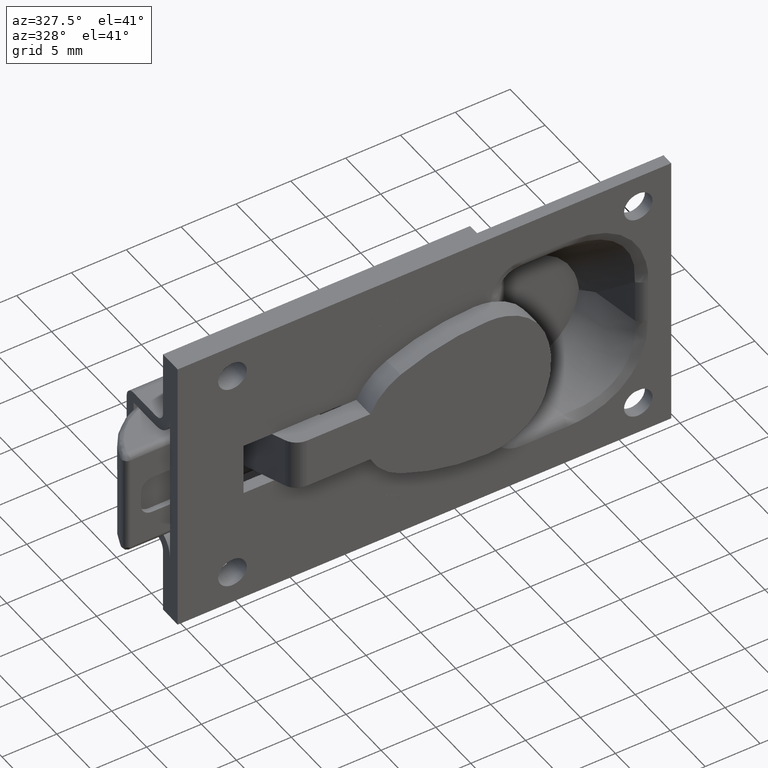
[diagram: clean part render]
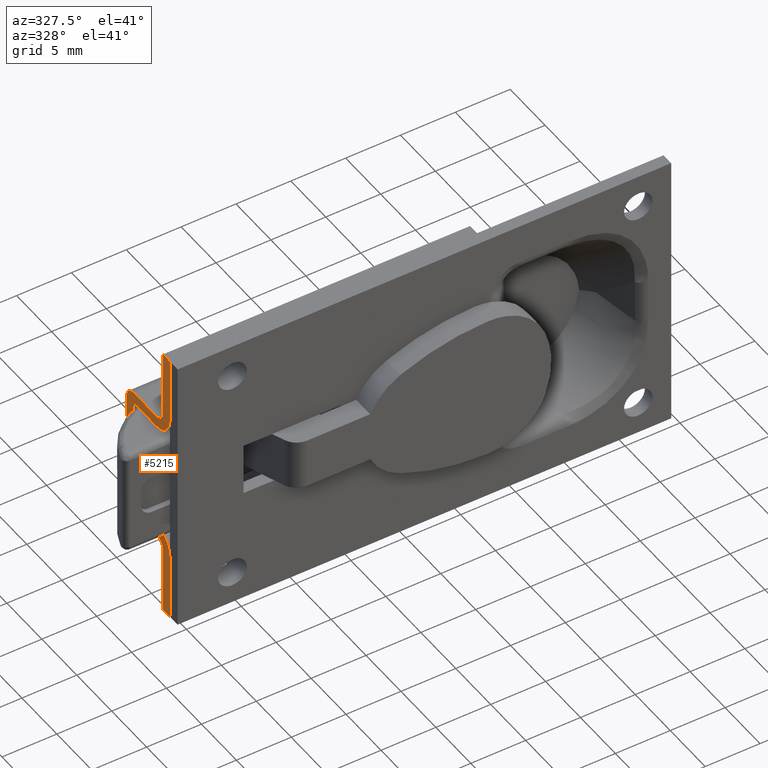
[diagram: same view with one face highlighted and labeled with its STEP entity id]
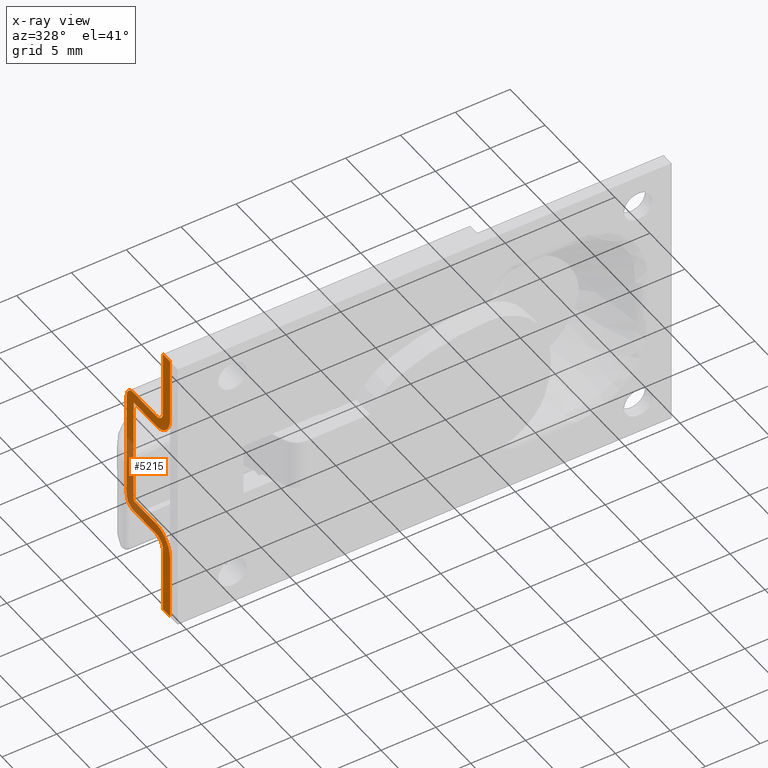
[diagram: x-ray of the same camera — body ghosted, the highlighted face saturated]
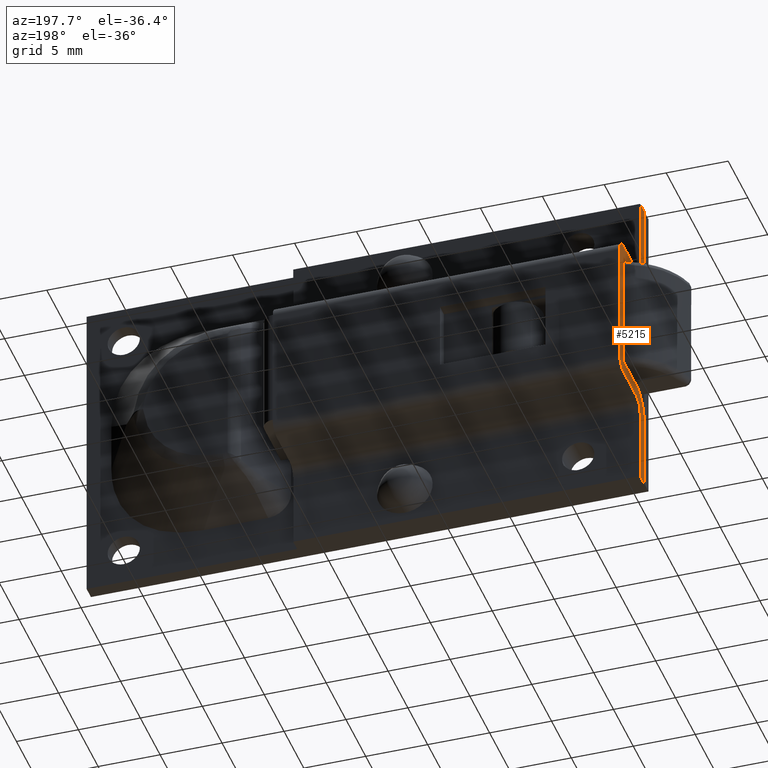
[diagram: same view with one face highlighted and labeled with its STEP entity id]
A machine part, auxiliary view. The second image highlights one B-rep face of the part: STEP entity #5215.
The next image is the same camera in x-ray: the body ghosted, the highlighted face saturated — about 22% of this face is hidden behind the body in this view.
A second angle (auxiliary view) of the same face is appended — the face is thin or edge-on in the first view.
In plain terms, the highlighted face is a freeform B-spline surface patch.
Its self-contained STEP definition (entity closure, byte-faithful):
#5030=CARTESIAN_POINT('',(-10.800003000000119,7.609682846384334,14.298699949606959));
#5031=CARTESIAN_POINT('',(-10.800003000000119,0.790307042751101,14.298699949606950));
#5032=CARTESIAN_POINT('',(-10.800003000000119,7.609682846384334,-14.298700646981301));
#5033=CARTESIAN_POINT('',(-10.800003000000119,0.790307042751101,-14.298700646981301));
#5034=B_SPLINE_SURFACE_WITH_KNOTS('',1,1,((#5030,#5032),(#5031,#5033)),.UNSPECIFIED.,.F.,.F.,.U.,(2,2),(2,2),(0.0,6.819375803633232),(0.0,28.597400596588258),.UNSPECIFIED.);
#5035=CARTESIAN_POINT('',(-10.800003000000160,6.299993000000001,6.0));
#5036=VERTEX_POINT('',#5035);
#5037=CARTESIAN_POINT('',(-10.800003000000160,7.299993000000001,5.0));
#5038=VERTEX_POINT('',#5037);
#5039=CARTESIAN_POINT('',(-10.800003000000160,6.299993000000001,6.0));
#5040=CARTESIAN_POINT('',(-10.800003000000160,7.299993000000002,6.0));
#5041=CARTESIAN_POINT('',(-10.800003000000160,7.299993000000001,5.0));
#5049=(BOUNDED_CURVE()B_SPLINE_CURVE(2,(#5039,#5040,#5041),.UNSPECIFIED.,.F.,.U.)CURVE()GEOMETRIC_REPRESENTATION_ITEM()QUASI_UNIFORM_CURVE()RATIONAL_B_SPLINE_CURVE((1.0,0.707106781186548,1.0))REPRESENTATION_ITEM(''));
#5050=EDGE_CURVE('',#5036,#5038,#5049,.T.);
#5051=ORIENTED_EDGE('',*,*,#5050,.T.);
#5052=CARTESIAN_POINT('',(-10.800003000000160,7.299993000000001,-5.000000157079640));
#5053=VERTEX_POINT('',#5052);
#5054=CARTESIAN_POINT('',(-10.800003000000160,7.299993000000001,-5.000000157079640));
#5055=CARTESIAN_POINT('',(-10.800003000000160,7.299993000000001,5.0));
#5056=QUASI_UNIFORM_CURVE('',1,(#5054,#5055),.UNSPECIFIED.,.F.,.U.);
#5057=EDGE_CURVE('',#5053,#5038,#5056,.T.);
#5058=ORIENTED_EDGE('',*,*,#5057,.F.);
#5059=CARTESIAN_POINT('',(-10.800003000000160,6.299993000000001,-6.0));
#5060=VERTEX_POINT('',#5059);
#5061=CARTESIAN_POINT('',(-10.800003000000160,7.299992999999988,-5.000000157079640));
#5062=CARTESIAN_POINT('',(-10.800003000000160,7.299992842920371,-6.0));
#5063=CARTESIAN_POINT('',(-10.800003000000160,6.299993000000001,-6.0));
#5071=(BOUNDED_CURVE()B_SPLINE_CURVE(2,(#5061,#5062,#5063),.UNSPECIFIED.,.F.,.U.)CURVE()GEOMETRIC_REPRESENTATION_ITEM()QUASI_UNIFORM_CURVE()RATIONAL_B_SPLINE_CURVE((1.0,0.707106836722585,1.0))REPRESENTATION_ITEM(''));
#5072=EDGE_CURVE('',#5053,#5060,#5071,.T.);
#5073=ORIENTED_EDGE('',*,*,#5072,.T.);
#5074=CARTESIAN_POINT('',(-10.800003000000160,3.099997052359880,-6.0));
#5075=VERTEX_POINT('',#5074);
#5076=CARTESIAN_POINT('',(-10.800003000000160,3.099997052359880,-6.0));
#5077=CARTESIAN_POINT('',(-10.800003000000160,6.299993000000001,-6.0));
#5078=QUASI_UNIFORM_CURVE('',1,(#5076,#5077),.UNSPECIFIED.,.F.,.U.);
#5079=EDGE_CURVE('',#5075,#5060,#5078,.T.);
#5080=ORIENTED_EDGE('',*,*,#5079,.F.);
#5081=CARTESIAN_POINT('',(-10.800003000000160,2.099997000000000,-7.0));
#5082=VERTEX_POINT('',#5081);
#5083=CARTESIAN_POINT('',(-10.800003000000160,2.099997000000000,-7.0));
#5084=CARTESIAN_POINT('',(-10.800003000000160,2.099997000000000,-6.585786422291053));
#5085=CARTESIAN_POINT('',(-10.800003000000160,2.392890237325466,-6.292893200301440));
#5086=CARTESIAN_POINT('',(-10.800003000000160,2.685783474650931,-5.999999978311829));
#5087=CARTESIAN_POINT('',(-10.800003000000160,3.099997052359880,-6.000000000000002));
#5095=(BOUNDED_CURVE()B_SPLINE_CURVE(2,(#5083,#5084,#5085,#5086,#5087),.UNSPECIFIED.,.F.,.U.)B_SPLINE_CURVE_WITH_KNOTS((3,2,3),(0.0,0.500000000000000,1.0),.UNSPECIFIED.)CURVE()GEOMETRIC_REPRESENTATION_ITEM()RATIONAL_B_SPLINE_CURVE((1.0,0.923879527501972,1.0,0.923879527501972,1.0))REPRESENTATION_ITEM(''));
#5096=EDGE_CURVE('',#5082,#5075,#5095,.T.);
#5097=ORIENTED_EDGE('',*,*,#5096,.F.);
#5098=CARTESIAN_POINT('',(-10.800003000000160,2.099997000000000,-13.0));
#5099=VERTEX_POINT('',#5098);
#5100=CARTESIAN_POINT('',(-10.800003000000160,2.099997000000000,-13.0));
#5101=CARTESIAN_POINT('',(-10.800003000000160,2.099997000000000,-7.0));
#5102=QUASI_UNIFORM_CURVE('',1,(#5100,#5101),.UNSPECIFIED.,.F.,.U.);
#5103=EDGE_CURVE('',#5099,#5082,#5102,.T.);
#5104=ORIENTED_EDGE('',*,*,#5103,.F.);
#5105=CARTESIAN_POINT('',(-10.800003000000160,1.099997000000016,-13.0));
#5106=VERTEX_POINT('',#5105);
#5107=CARTESIAN_POINT('',(-10.800003000000160,1.099997000000016,-13.0));
#5108=CARTESIAN_POINT('',(-10.800003000000160,2.099997000000000,-13.0));
#5109=QUASI_UNIFORM_CURVE('',1,(#5107,#5108),.UNSPECIFIED.,.F.,.U.);
#5110=EDGE_CURVE('',#5106,#5099,#5109,.T.);
#5111=ORIENTED_EDGE('',*,*,#5110,.F.);
#5112=CARTESIAN_POINT('',(-10.800003000000160,1.099997000000000,-7.0));
#5113=VERTEX_POINT('',#5112);
#5114=CARTESIAN_POINT('',(-10.800003000000160,1.099997000000000,-7.0));
#5115=CARTESIAN_POINT('',(-10.800003000000160,1.099997000000016,-13.0));
#5116=QUASI_UNIFORM_CURVE('',1,(#5114,#5115),.UNSPECIFIED.,.F.,.U.);
#5117=EDGE_CURVE('',#5113,#5106,#5116,.T.);
#5118=ORIENTED_EDGE('',*,*,#5117,.F.);
#5119=CARTESIAN_POINT('',(-10.800003000000160,3.099997000000000,-5.0));
#5120=VERTEX_POINT('',#5119);
#5121=CARTESIAN_POINT('',(-10.800003000000160,1.099997000000000,-7.0));
#5122=CARTESIAN_POINT('',(-10.800003000000160,1.099997000000000,-5.000000000000001));
#5123=CARTESIAN_POINT('',(-10.800003000000160,3.099997000000000,-5.0));
#5131=(BOUNDED_CURVE()B_SPLINE_CURVE(2,(#5121,#5122,#5123),.UNSPECIFIED.,.F.,.U.)CURVE()GEOMETRIC_REPRESENTATION_ITEM()QUASI_UNIFORM_CURVE()RATIONAL_B_SPLINE_CURVE((1.0,0.707106781186548,1.0))REPRESENTATION_ITEM(''));
#5132=EDGE_CURVE('',#5113,#5120,#5131,.T.);
#5133=ORIENTED_EDGE('',*,*,#5132,.T.);
#5134=CARTESIAN_POINT('',(-10.800003000000160,6.299993000000001,-5.0));
#5135=VERTEX_POINT('',#5134);
#5136=CARTESIAN_POINT('',(-10.800003000000160,6.299993000000001,-5.0));
#5137=CARTESIAN_POINT('',(-10.800003000000160,3.099997000000000,-5.0));
#5138=QUASI_UNIFORM_CURVE('',1,(#5136,#5137),.UNSPECIFIED.,.F.,.U.);
#5139=EDGE_CURVE('',#5135,#5120,#5138,.T.);
#5140=ORIENTED_EDGE('',*,*,#5139,.F.);
#5141=CARTESIAN_POINT('',(-10.800003000000160,6.299993000000001,5.0));
#5142=VERTEX_POINT('',#5141);
#5143=CARTESIAN_POINT('',(-10.800003000000160,6.299993000000001,5.0));
#5144=CARTESIAN_POINT('',(-10.800003000000160,6.299993000000001,-5.0));
#5145=QUASI_UNIFORM_CURVE('',1,(#5143,#5144),.UNSPECIFIED.,.F.,.U.);
#5146=EDGE_CURVE('',#5142,#5135,#5145,.T.);
#5147=ORIENTED_EDGE('',*,*,#5146,.F.);
#5148=CARTESIAN_POINT('',(-10.800003000000160,3.099997104719761,5.0));
#5149=VERTEX_POINT('',#5148);
#5150=CARTESIAN_POINT('',(-10.800003000000160,3.099997104719761,5.0));
#5151=CARTESIAN_POINT('',(-10.800003000000160,6.299993000000001,5.0));
#5152=QUASI_UNIFORM_CURVE('',1,(#5150,#5151),.UNSPECIFIED.,.F.,.U.);
#5153=EDGE_CURVE('',#5149,#5142,#5152,.T.);
#5154=ORIENTED_EDGE('',*,*,#5153,.F.);
#5155=CARTESIAN_POINT('',(-10.800003000000160,1.099997000000016,7.0));
#5156=VERTEX_POINT('',#5155);
#5157=CARTESIAN_POINT('',(-10.800003000000160,3.099997104719761,5.000000000000003));
#5158=CARTESIAN_POINT('',(-10.800003000000160,2.271569949301865,4.999999956623654));
#5159=CARTESIAN_POINT('',(-10.800003000000160,1.685783474650932,5.585786400602879));
#5160=CARTESIAN_POINT('',(-10.800003000000160,1.099997000000000,6.171572844582103));
#5161=CARTESIAN_POINT('',(-10.800003000000160,1.099997000000000,7.0));
#5169=(BOUNDED_CURVE()B_SPLINE_CURVE(2,(#5157,#5158,#5159,#5160,#5161),.UNSPECIFIED.,.F.,.U.)B_SPLINE_CURVE_WITH_KNOTS((3,2,3),(0.0,0.500000000000000,1.0),.UNSPECIFIED.)CURVE()GEOMETRIC_REPRESENTATION_ITEM()RATIONAL_B_SPLINE_CURVE((1.0,0.923879527501972,1.0,0.923879527501972,1.0))REPRESENTATION_ITEM(''));
#5170=EDGE_CURVE('',#5149,#5156,#5169,.T.);
#5171=ORIENTED_EDGE('',*,*,#5170,.T.);
#5172=CARTESIAN_POINT('',(-10.800003000000160,1.099997000000016,13.0));
#5173=VERTEX_POINT('',#5172);
#5174=CARTESIAN_POINT('',(-10.800003000000160,1.099997000000016,13.0));
#5175=CARTESIAN_POINT('',(-10.800003000000160,1.099997000000016,7.0));
#5176=QUASI_UNIFORM_CURVE('',1,(#5174,#5175),.UNSPECIFIED.,.F.,.U.);
#5177=EDGE_CURVE('',#5173,#5156,#5176,.T.);
#5178=ORIENTED_EDGE('',*,*,#5177,.F.);
#5179=CARTESIAN_POINT('',(-10.800003000000160,2.099997000000000,13.0));
#5180=VERTEX_POINT('',#5179);
#5181=CARTESIAN_POINT('',(-10.800003000000160,2.099997000000000,13.0));
#5182=CARTESIAN_POINT('',(-10.800003000000160,1.099997000000016,13.0));
#5183=QUASI_UNIFORM_CURVE('',1,(#5181,#5182),.UNSPECIFIED.,.F.,.U.);
#5184=EDGE_CURVE('',#5180,#5173,#5183,.T.);
#5185=ORIENTED_EDGE('',*,*,#5184,.F.);
#5186=CARTESIAN_POINT('',(-10.800003000000160,2.099997000000000,6.999999947640110));
#5187=VERTEX_POINT('',#5186);
#5188=CARTESIAN_POINT('',(-10.800003000000160,2.099997000000000,6.999999947640110));
#5189=CARTESIAN_POINT('',(-10.800003000000160,2.099997000000000,13.0));
#5190=QUASI_UNIFORM_CURVE('',1,(#5188,#5189),.UNSPECIFIED.,.F.,.U.);
#5191=EDGE_CURVE('',#5187,#5180,#5190,.T.);
#5192=ORIENTED_EDGE('',*,*,#5191,.F.);
#5193=CARTESIAN_POINT('',(-10.800003000000160,3.099997000000000,6.0));
#5194=VERTEX_POINT('',#5193);
#5195=CARTESIAN_POINT('',(-10.800003000000160,3.099997000000000,6.0));
#5196=CARTESIAN_POINT('',(-10.800003000000160,2.099997052359888,6.0));
#5197=CARTESIAN_POINT('',(-10.800003000000160,2.099997000000001,6.999999947640110));
#5205=(BOUNDED_CURVE()B_SPLINE_CURVE(2,(#5195,#5196,#5197),.UNSPECIFIED.,.F.,.U.)CURVE()GEOMETRIC_REPRESENTATION_ITEM()QUASI_UNIFORM_CURVE()RATIONAL_B_SPLINE_CURVE((1.0,0.707106799698564,1.0))REPRESENTATION_ITEM(''));
#5206=EDGE_CURVE('',#5194,#5187,#5205,.T.);
#5207=ORIENTED_EDGE('',*,*,#5206,.F.);
#5208=CARTESIAN_POINT('',(-10.800003000000160,6.299993000000001,6.0));
#5209=CARTESIAN_POINT('',(-10.800003000000160,3.099997000000000,6.0));
#5210=QUASI_UNIFORM_CURVE('',1,(#5208,#5209),.UNSPECIFIED.,.F.,.U.);
#5211=EDGE_CURVE('',#5036,#5194,#5210,.T.);
#5212=ORIENTED_EDGE('',*,*,#5211,.F.);
#5213=EDGE_LOOP('',(#5051,#5058,#5073,#5080,#5097,#5104,#5111,#5118,#5133,#5140,#5147,#5154,#5171,#5178,#5185,#5192,#5207,#5212));
#5214=FACE_OUTER_BOUND('',#5213,.T.);
#5215=ADVANCED_FACE('',(#5214),#5034,.F.);